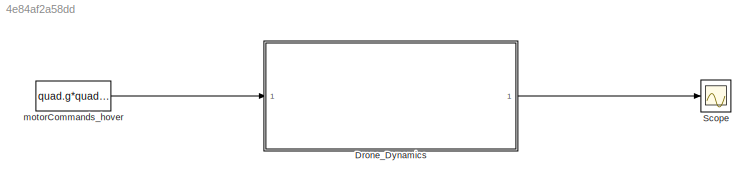
MODEL slx_4e84af2a58dd
KIND model
CONFIG AbsTol = auto
CONFIG FixedStep = auto
CONFIG InitFcn = % load parameters of the default quadrotor\ndisp('Quadrotor parameters loaded by InitFcn')\nparameters_estimationcontrol %load mdl_quadcopter as well!
CONFIG MaxStep = auto
CONFIG MinStep = auto
CONFIG RelTol = 1e-3
CONFIG SampleTimeConstraint = Unconstrained
CONFIG Solver = ode45
CONFIG SolverMode = Auto
CONFIG SolverName = ode45
CONFIG StartTime = 0.0
CONFIG StopTime = 10.0
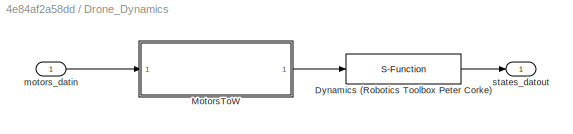
BLOCK [SubSystem] Drone_Dynamics
  AncestorBlock = roblocks/Dynamics/Quadrotor
  Ports = [1, 1]
  RequestExecContextInheritance = off
BLOCK [S-Function] Drone_Dynamics/Dynamics (Robotics Toolbox Peter Corke)
  FunctionName = quadrotor_dynamics
  Parameters = quad
  Ports = [1, 1]
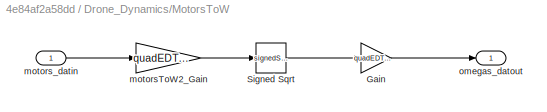
BLOCK [SubSystem] Drone_Dynamics/MotorsToW
  Ports = [1, 1]
  RequestExecContextInheritance = off
BLOCK [Gain] Drone_Dynamics/MotorsToW/Gain
  Gain = quadEDT.motorUnknownGain_gain
  OutDataTypeStr = Inherit: Inherit via internal rule
  ParamDataTypeStr = Inherit: Inherit via internal rule
  SaturateOnIntegerOverflow = off
BLOCK [Sqrt] Drone_Dynamics/MotorsToW/Signed Sqrt
  Operator = signedSqrt
BLOCK [Gain] Drone_Dynamics/MotorsToW/motorsToW2_Gain
  Gain = quadEDT.motorcommandToW2_gain
  OutDataTypeStr = Inherit: Inherit via internal rule
  ParamDataTypeStr = Inherit: Inherit via internal rule
  SaturateOnIntegerOverflow = off
BLOCK [Inport] Drone_Dynamics/MotorsToW/motors_datin
  IconDisplay = Port number
BLOCK [Outport] Drone_Dynamics/MotorsToW/omegas_datout
  IconDisplay = Port number
BLOCK [Inport] Drone_Dynamics/motors_datin
  IconDisplay = Port number
BLOCK [Outport] Drone_Dynamics/states_datout
  IconDisplay = Port number
BLOCK [Scope] Scope
  Floating = off
  NumInputPorts = 1
  Ports = [1]
BLOCK [Constant] motorCommands_hover
  Value = quad.g*quad.M*1/(quad.Ct*quad.rho*quad.A*quad.r^2)*1/quadEDT.motorcommandToW2_gain/4*[1 -1 1 -1]
LINE Drone_Dynamics:1 -> Scope:1
LINE motorCommands_hover:1 -> Drone_Dynamics:1
